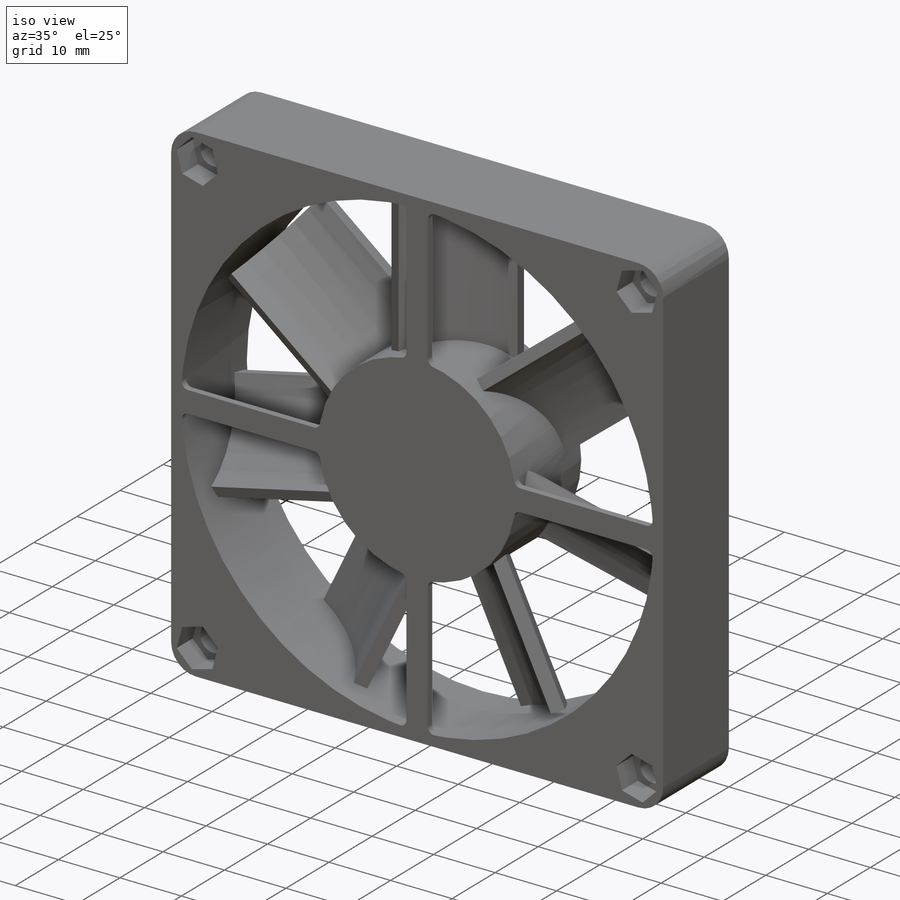
[diagram: iso view]
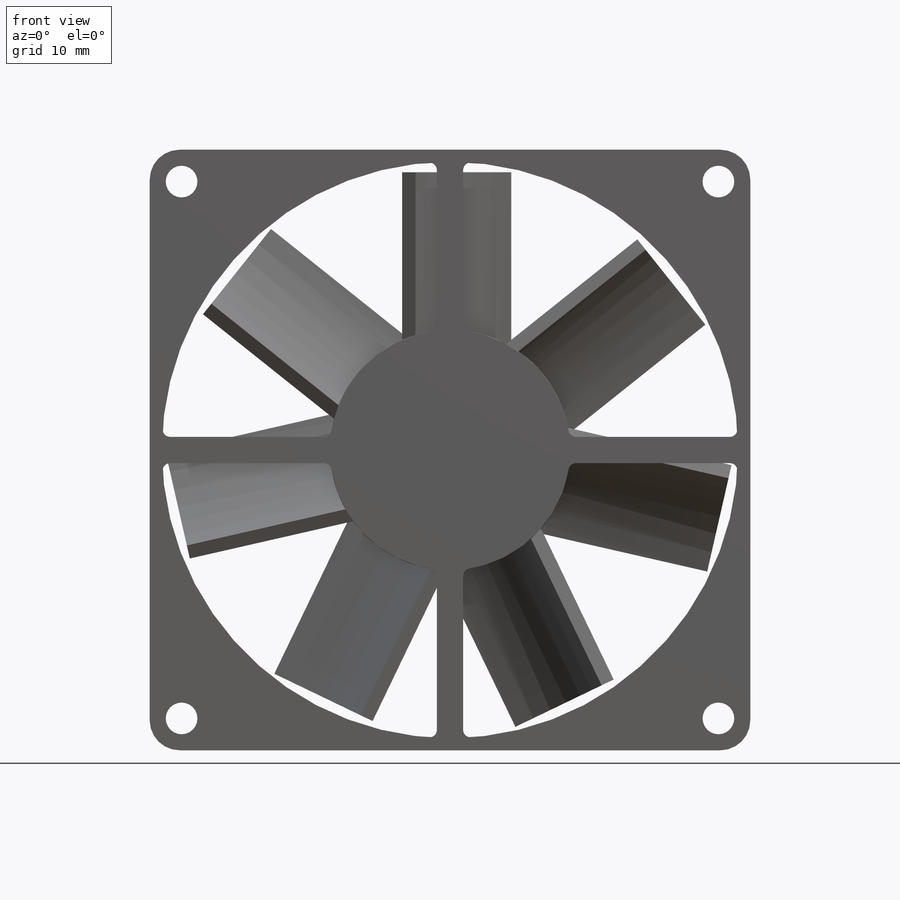
[diagram: front view]
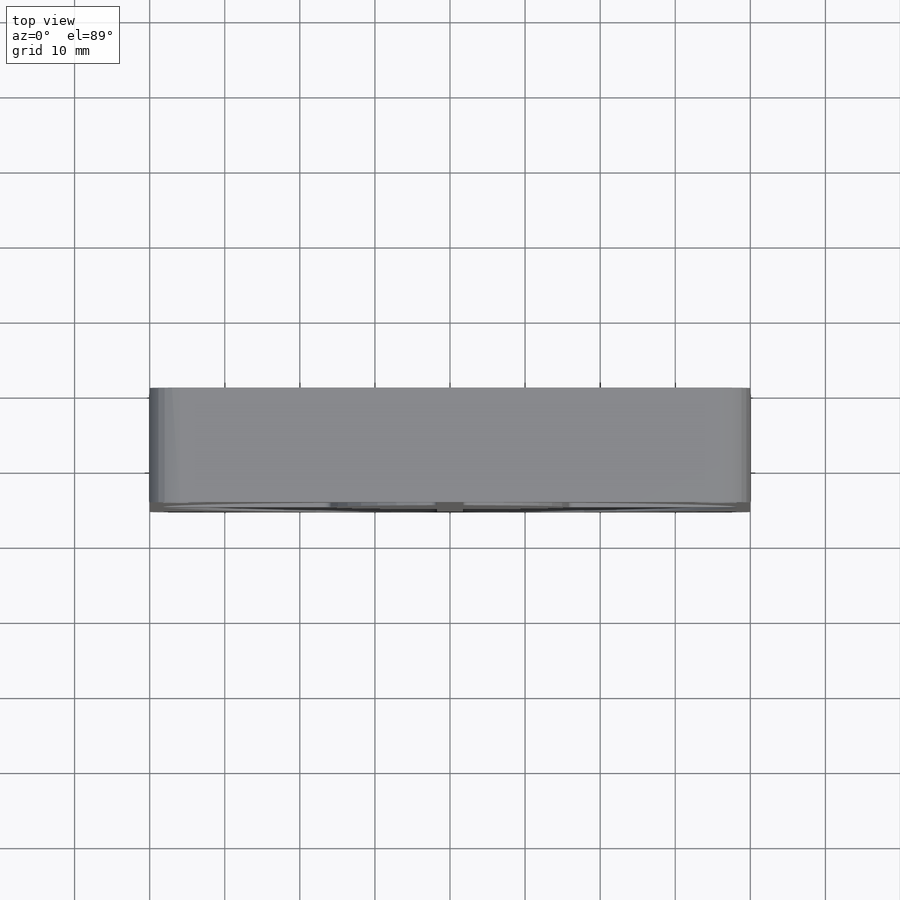
[diagram: top view]
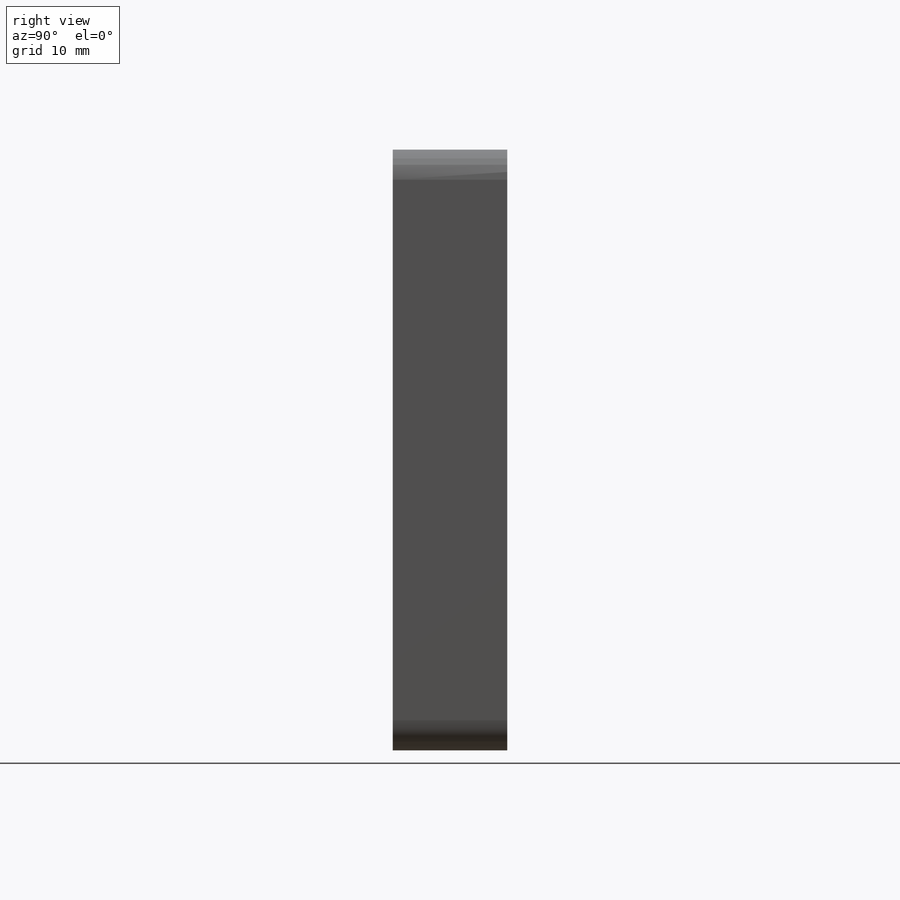
[diagram: right view]
SOLIDWORKS PART (.sldprt)
format: sldprt  version: not decoded by parser v0  size: 406,528 bytes
history: native  units: mm
features: sketch x6, extrude x3, pattern_circular x3, cut_extrude x2, material x1 (+11 scaffold rows collapsed)
feature tree (26):
  scaffold x11  (default folders/planes/origin — collapsed)
  material  "Material <not specified>"
  sketch  "Sketch1"  dims[D1=4.0mm D4=76.75mm D5=4.22mm D2=80.0mm D3=71.5mm D6=71.5mm]
  extrude  "Boss-Extrude1"  Depth=15.25mm
  sketch  "Sketch2"  dims[D1=32.0mm D2=1.0mm D3=3.5mm]
  extrude  "Boss-Extrude2"  Depth=1mm
  pattern_circular  "CirPattern1"  Count=4 Angle=360deg
  sketch  "Sketch4"
  extrude  "Boss-Extrude3"  [1 undecoded]
  sketch  "Sketch5"  dims[D1=37.0mm D5=2.0mm D6=10.0mm D7=5.0mm]
  pattern_circular  "CirPattern2"  Count=7 Angle=360deg
  sketch  "Sketch6"  dims[D1=6.0mm]
  cut_extrude  "Cut-Extrude1"  Depth=3.7mm
  sketch  "Sketch7"  dims[D1=0.0mm]
  cut_extrude  "Cut-Extrude2"  Depth=3.7mm
  pattern_circular  "CirPattern3"  Count=4 Angle=360deg
decode coverage: 12 of 14 modeling features carry decoded parameters
note: 1 parameter value undecoded
note: suppression state not decoded; provenance and decode notes live in map.json
